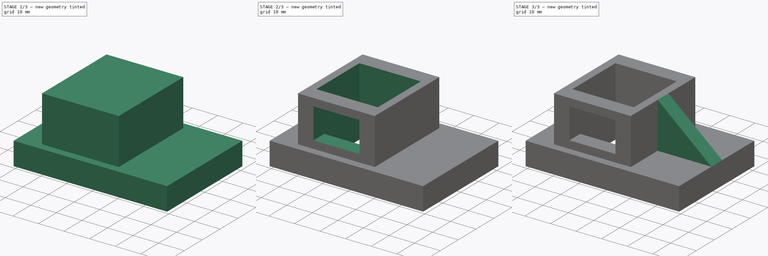
[diagram: build sequence overview — one tinted view per stage of 3, left to right]
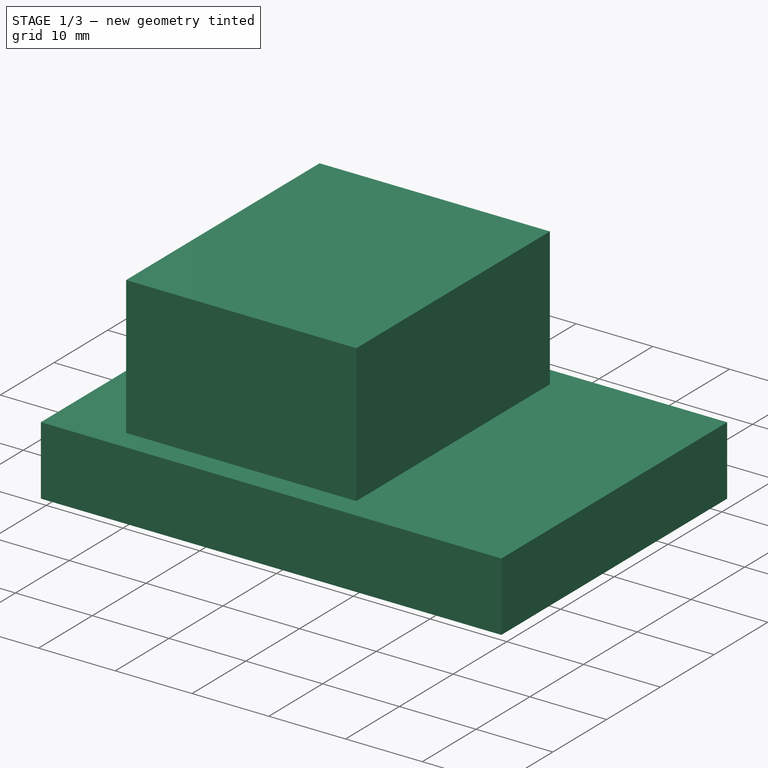
[diagram: stage 1 of 3 — iso view after this stage's code; geometry added in this stage tinted green]
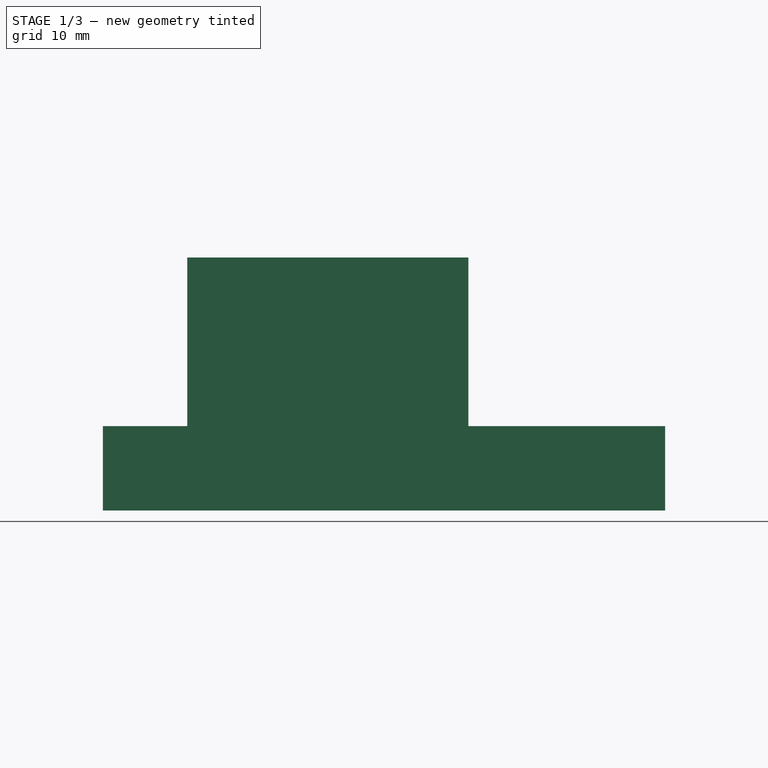
[diagram: stage 1 of 3 — front view after this stage's code; geometry added in this stage tinted green]
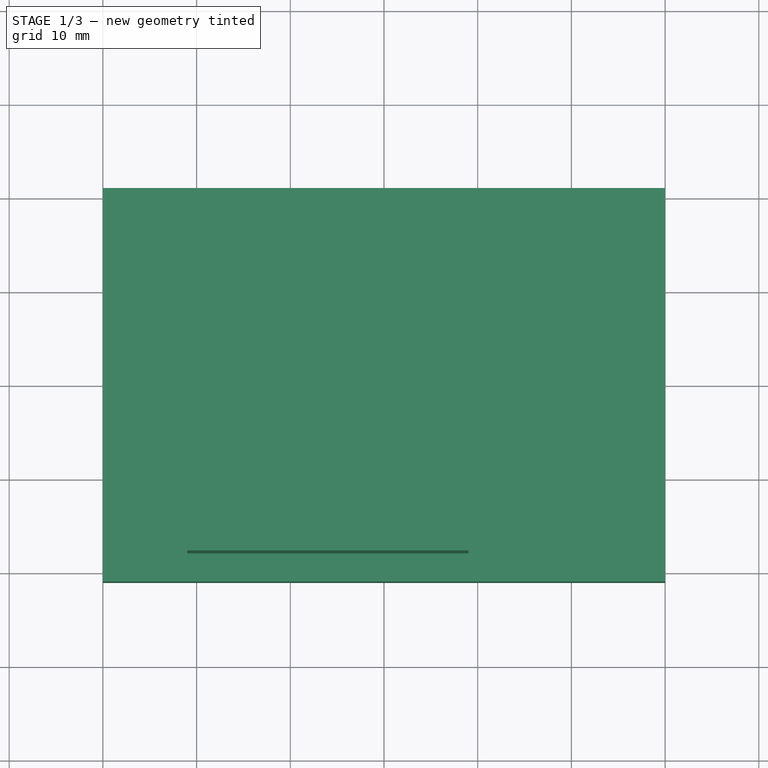
[diagram: stage 1 of 3 — top view after this stage's code; geometry added in this stage tinted green]
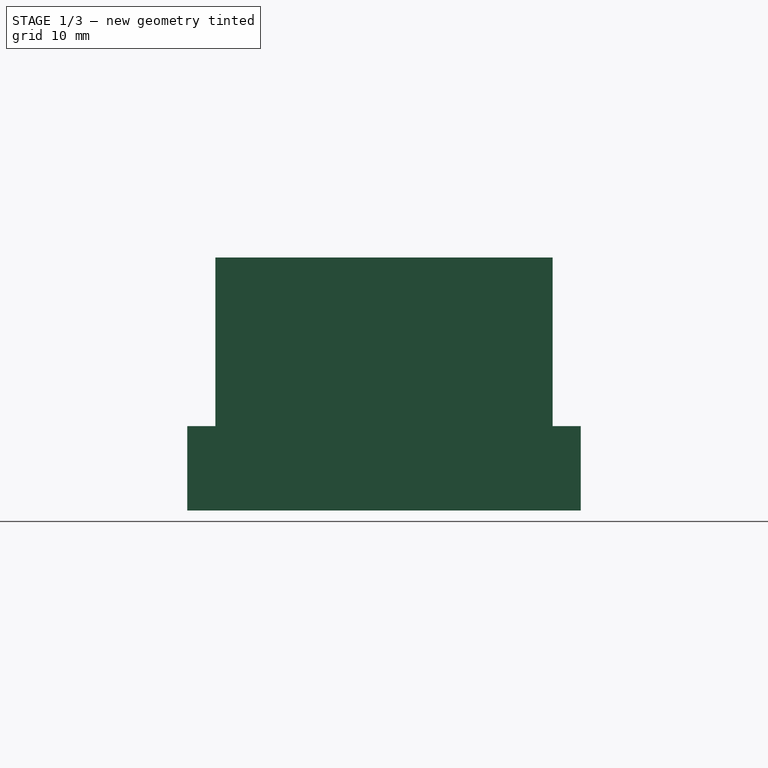
[diagram: stage 1 of 3 — right view after this stage's code; geometry added in this stage tinted green]
FCSTD DOCUMENT  (FreeCAD 0.16R)
Label: Fig 3.32 Final
License: All rights reserved
LicenseURL: http://en.wikipedia.org/wiki/All_rights_reserved
objects: Sketcher::SketchObject×5, PartDesign::Pad×3, PartDesign::Pocket×2, Part::MultiFuse×1
note: 16 computed .brp shape members not serialized (recipe doc carries the construction recipe); baked Part::Feature solids carry a one-line shape summary decoded from their .brp

FEATURE [Sketcher::SketchObject] Sketch
  sketch-geometry (4):
    g0: LineSegment StartX=-30 StartY=21 StartZ=0 EndX=30 EndY=21 EndZ=0
    g1: LineSegment StartX=30 StartY=21 StartZ=0 EndX=30 EndY=-21 EndZ=0
    g2: LineSegment StartX=30 StartY=-21 StartZ=0 EndX=-30 EndY=-21 EndZ=0
    g3: LineSegment StartX=-30 StartY=-21 StartZ=0 EndX=-30 EndY=21 EndZ=0
  constraints (12):
    c: Coincident(g0,g1)
    c: Coincident(g1,g2)
    c: Coincident(g2,g3)
    c: Coincident(g3,g0)
    c: Horizontal(g0)
    c: Horizontal(g2)
    c: Vertical(g1)
    c: Vertical(g3)
    c: DistanceX(g2,g2) = 60
    c: DistanceY(g1,g1) = 42
    c: Symmetric(g1,g0,g-1)
    c: Symmetric(g2,g1,g-2)
FEATURE [PartDesign::Pad] Pad
  Length = 9
  Length2 = 100
  Sketch = -> Sketch
  Type = 0
FEATURE [Sketcher::SketchObject] Sketch001
  ExternalGeometry = -> [Pad]
  Placement = pos=(0,0,9) rot=(0,0,1;0rad)
  Support = -> Pad [Face6]
  sketch-geometry (4):
    g0: LineSegment StartX=-21 StartY=18 StartZ=0 EndX=9 EndY=18 EndZ=0
    g1: LineSegment StartX=9 StartY=18 StartZ=0 EndX=9 EndY=-18 EndZ=0
    g2: LineSegment StartX=9 StartY=-18 StartZ=0 EndX=-21 EndY=-18 EndZ=0
    g3: LineSegment StartX=-21 StartY=-18 StartZ=0 EndX=-21 EndY=18 EndZ=0
  constraints (12):
    c: Coincident(g0,g1)
    c: Coincident(g1,g2)
    c: Coincident(g2,g3)
    c: Coincident(g3,g0)
    c: Horizontal(g0)
    c: Horizontal(g2)
    c: Vertical(g1)
    c: Vertical(g3)
    c: DistanceX(g2,g2) = 30
    c: DistanceY(g3,g3) = 36
    c: Symmetric(g0,g2,g-1)
    c: DistanceX(g0,g-5) = 21
FEATURE [PartDesign::Pad] Pad001
  Length = 18
  Length2 = 100
  Sketch = -> Sketch001
  Type = 0
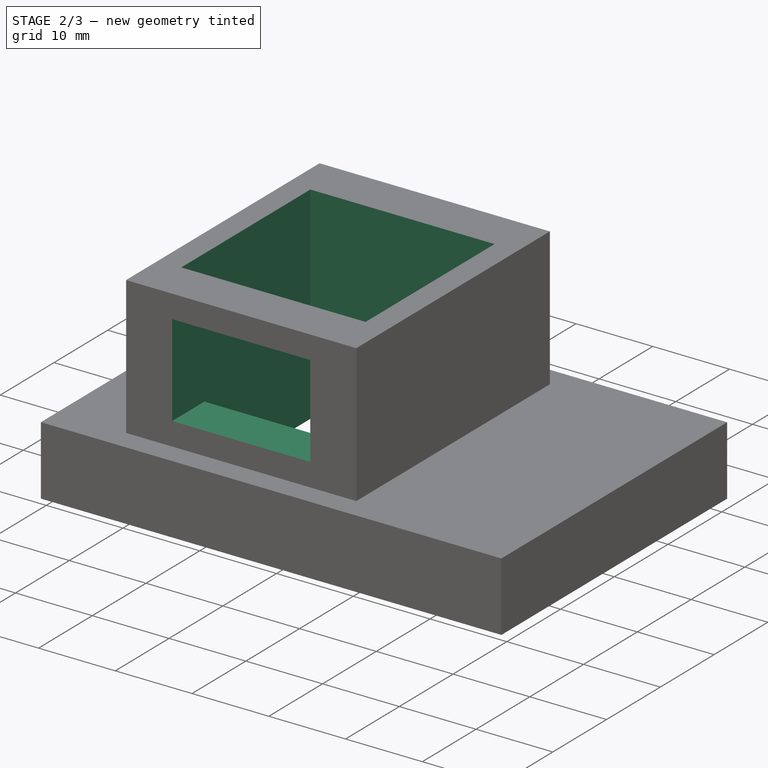
[diagram: stage 2 of 3 — iso view after this stage's code; geometry added in this stage tinted green]
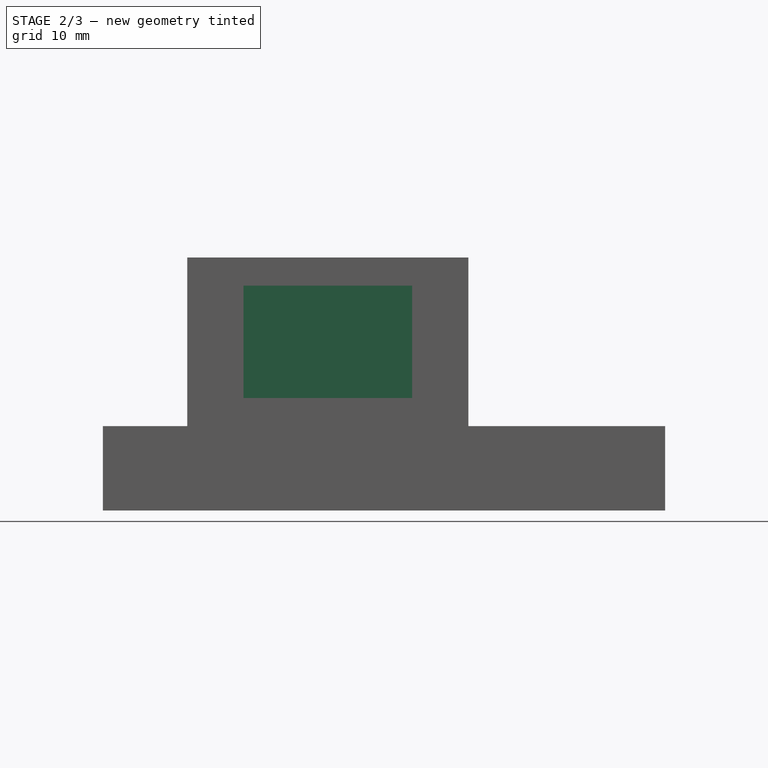
[diagram: stage 2 of 3 — front view after this stage's code; geometry added in this stage tinted green]
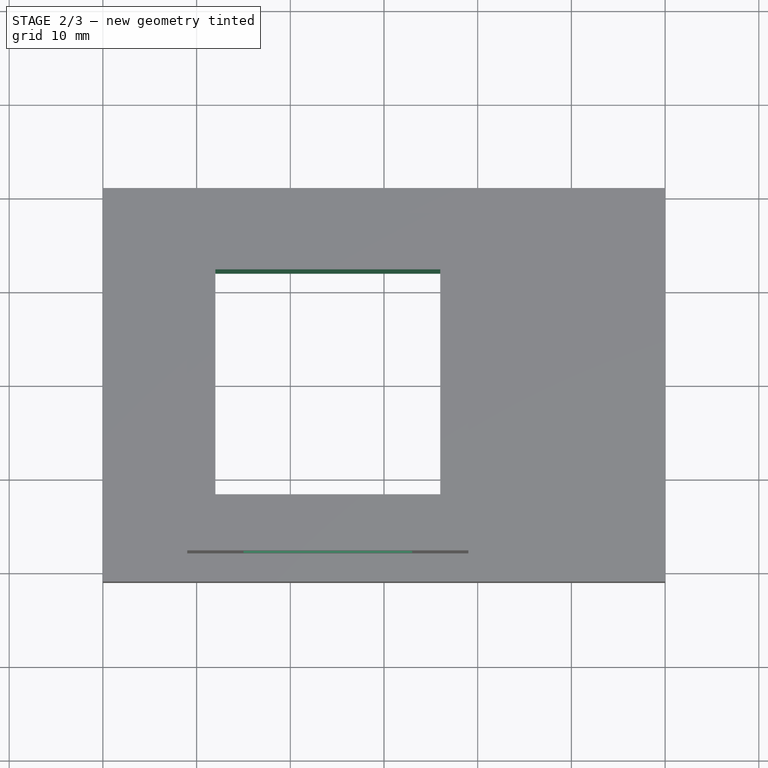
[diagram: stage 2 of 3 — top view after this stage's code; geometry added in this stage tinted green]
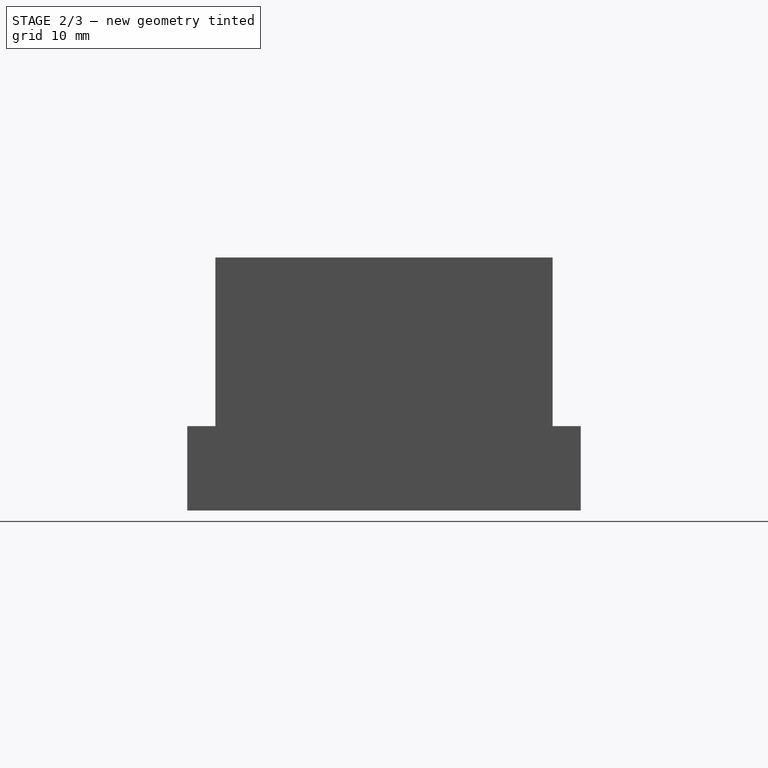
[diagram: stage 2 of 3 — right view after this stage's code; geometry added in this stage tinted green]
FEATURE [Sketcher::SketchObject] Sketch002
  ExternalGeometry = -> [Pad001]
  Placement = pos=(0,0,27) rot=(0,0,1;0rad)
  Support = -> Pad001 [Face11]
  sketch-geometry (4):
    g0: LineSegment StartX=-18 StartY=12 StartZ=0 EndX=6 EndY=12 EndZ=0
    g1: LineSegment StartX=6 StartY=12 StartZ=0 EndX=6 EndY=-12 EndZ=0
    g2: LineSegment StartX=6 StartY=-12 StartZ=0 EndX=-18 EndY=-12 EndZ=0
    g3: LineSegment StartX=-18 StartY=-12 StartZ=0 EndX=-18 EndY=12 EndZ=0
  constraints (12):
    c: Coincident(g0,g1)
    c: Coincident(g1,g2)
    c: Coincident(g2,g3)
    c: Coincident(g3,g0)
    c: Horizontal(g0)
    c: Horizontal(g2)
    c: Vertical(g1)
    c: Vertical(g3)
    c: DistanceY(g1,g1) = 24
    c: Symmetric(g1,g0,g-1)
    c: DistanceX(g-5,g2) = 3
    c: DistanceX(g1,g-5) = 3
FEATURE [PartDesign::Pocket] Pocket
  Length = 18
  Sketch = -> Sketch002
  Type = 1
FEATURE [Sketcher::SketchObject] Sketch005
  ExternalGeometry = -> [Pocket]
  Placement = pos=(0,-18,0) rot=(1,0,0;1.5708rad)
  Support = -> Pocket [Face12]
  sketch-geometry (4):
    g0: LineSegment StartX=-15 StartY=24 StartZ=0 EndX=3 EndY=24 EndZ=0
    g1: LineSegment StartX=3 StartY=24 StartZ=0 EndX=3 EndY=12 EndZ=0
    g2: LineSegment StartX=3 StartY=12 StartZ=0 EndX=-15 EndY=12 EndZ=0
    g3: LineSegment StartX=-15 StartY=12 StartZ=0 EndX=-15 EndY=24 EndZ=0
  constraints (12):
    c: Coincident(g0,g1)
    c: Coincident(g1,g2)
    c: Coincident(g2,g3)
    c: Coincident(g3,g0)
    c: Horizontal(g0)
    c: Horizontal(g2)
    c: Vertical(g1)
    c: Vertical(g3)
    c: DistanceX(g0,g-4) = 6
    c: DistanceX(g0,g0) = 18
    c: DistanceY(g3,g3) = 12
    c: DistanceY(g0,g-4) = 3
FEATURE [PartDesign::Pocket] Pocket001
  Length = 6
  Sketch = -> Sketch005
  Type = 0
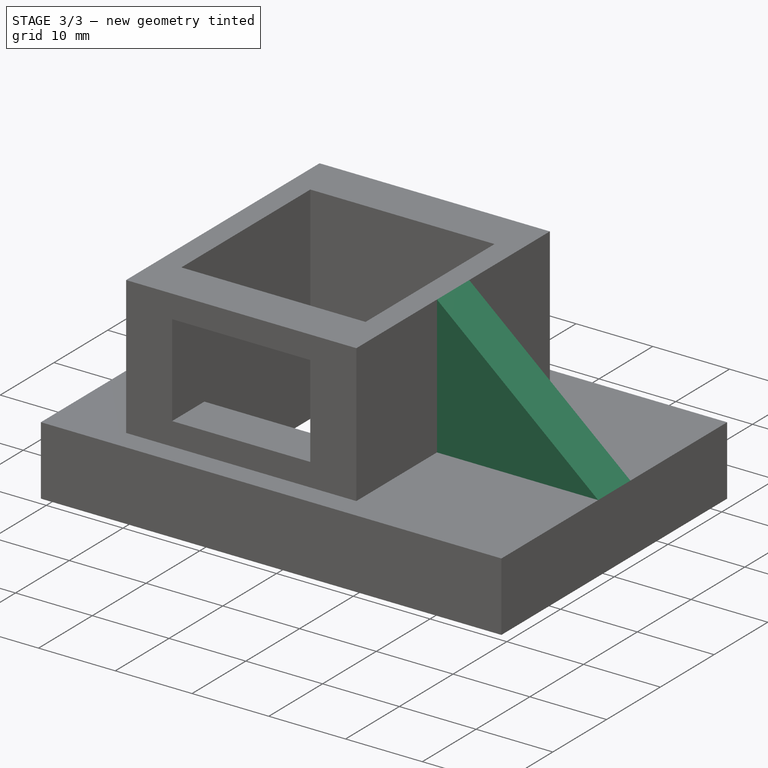
[diagram: stage 3 of 3 — iso view after this stage's code; geometry added in this stage tinted green]
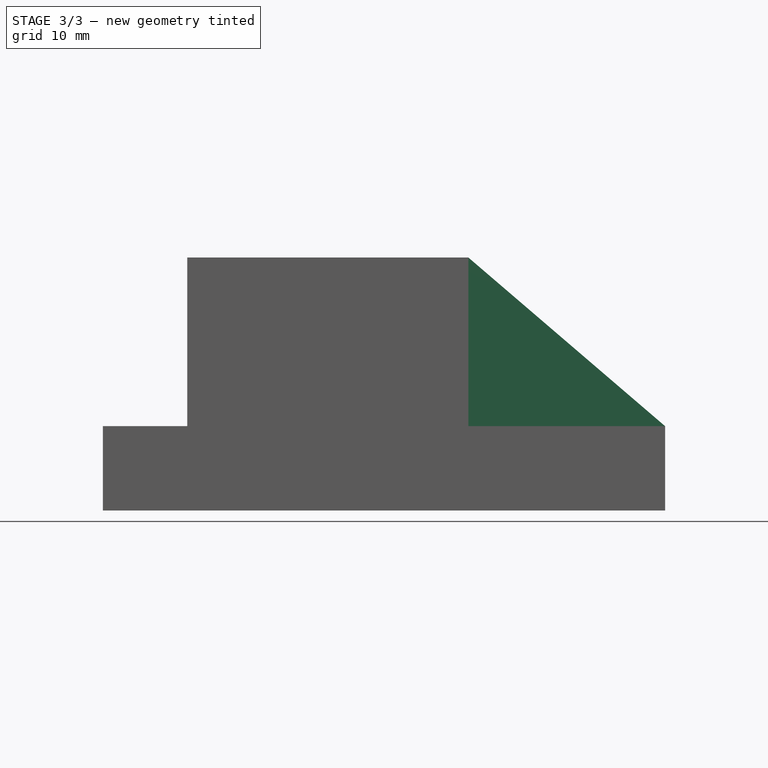
[diagram: stage 3 of 3 — front view after this stage's code; geometry added in this stage tinted green]
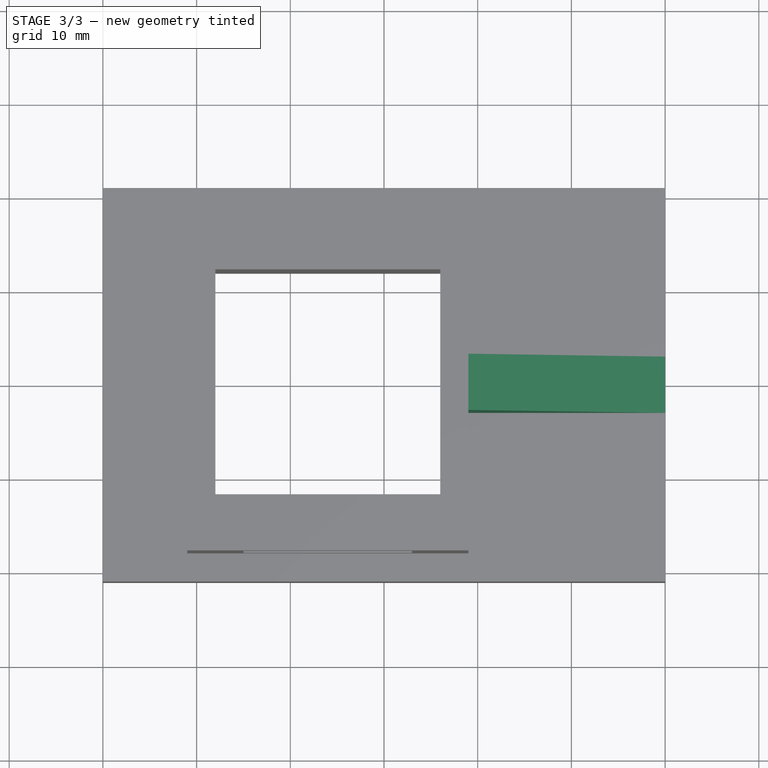
[diagram: stage 3 of 3 — top view after this stage's code; geometry added in this stage tinted green]
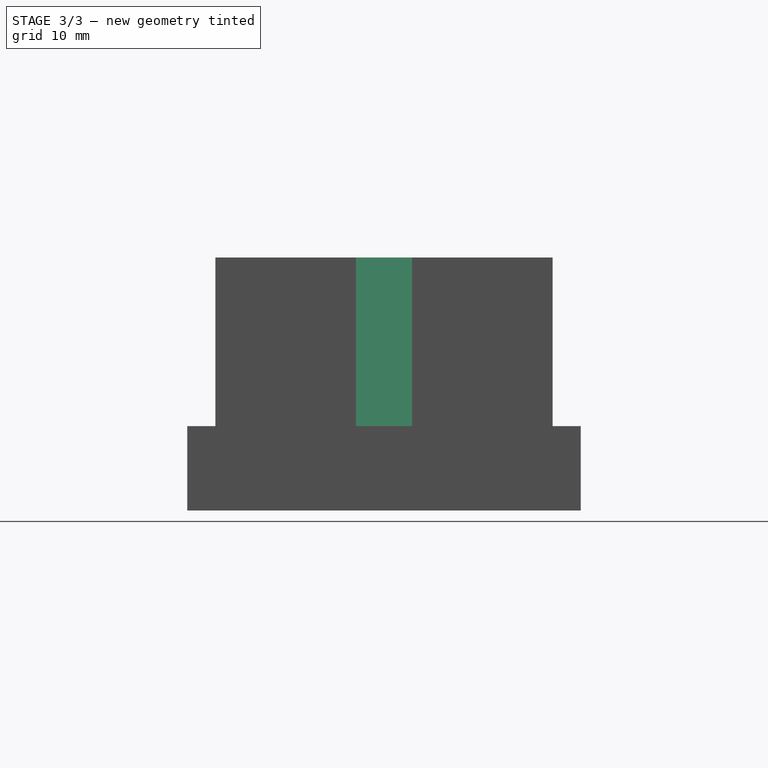
[diagram: stage 3 of 3 — right view after this stage's code; geometry added in this stage tinted green]
FEATURE [Sketcher::SketchObject] Sketch004
  Placement = pos=(0,0,0) rot=(-1,0,0;4.71239rad)
  sketch-geometry (3):
    g0: LineSegment StartX=9 StartY=27 StartZ=0 EndX=9 EndY=9 EndZ=0
    g1: LineSegment StartX=9 StartY=9 StartZ=0 EndX=30 EndY=9 EndZ=0
    g2: LineSegment StartX=30 StartY=9 StartZ=0 EndX=9 EndY=27 EndZ=0
  constraints (9):
    c: Coincident(g0,g1)
    c: Horizontal(g1)
    c: Coincident(g1,g2)
    c: Coincident(g2,g0)
    c: Vertical(g0)
    c: DistanceY(g-1,g1) = 9
    c: DistanceX(g-1,g1) = 30
    c: DistanceX(g0,g1) = 21
    c: DistanceY(g0,g0) = 18
FEATURE [PartDesign::Pad] Pad002
  Length = 6
  Length2 = 100
  Midplane = true
  Placement = pos=(0,0,0) rot=(-1,0,0;4.71239rad)
  Sketch = -> Sketch004
  Type = 0
FEATURE [Part::MultiFuse] Fusion
  Shapes = -> [Pocket001,Pad002]
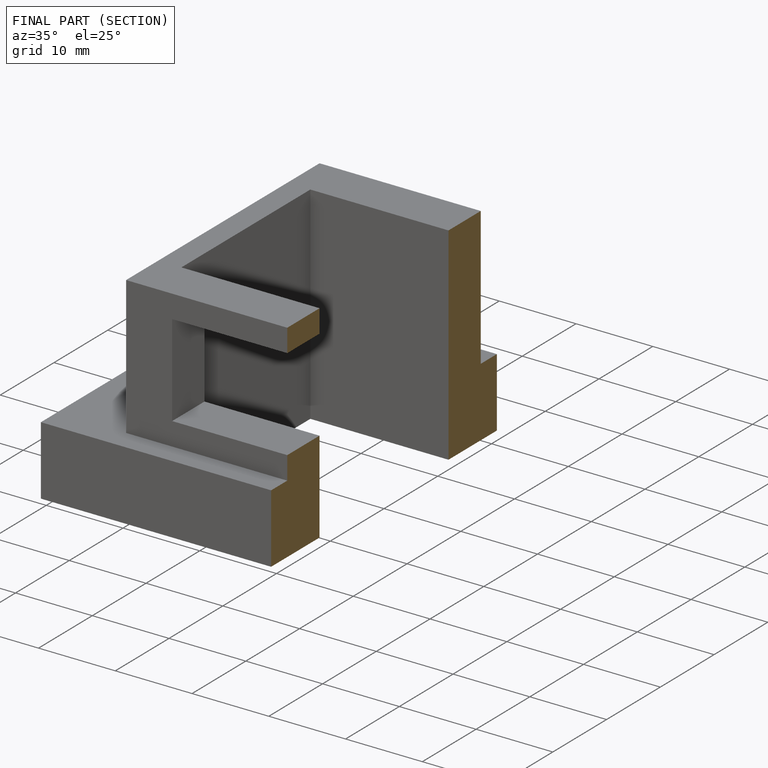
[diagram: finished part — half-section view (interior)]
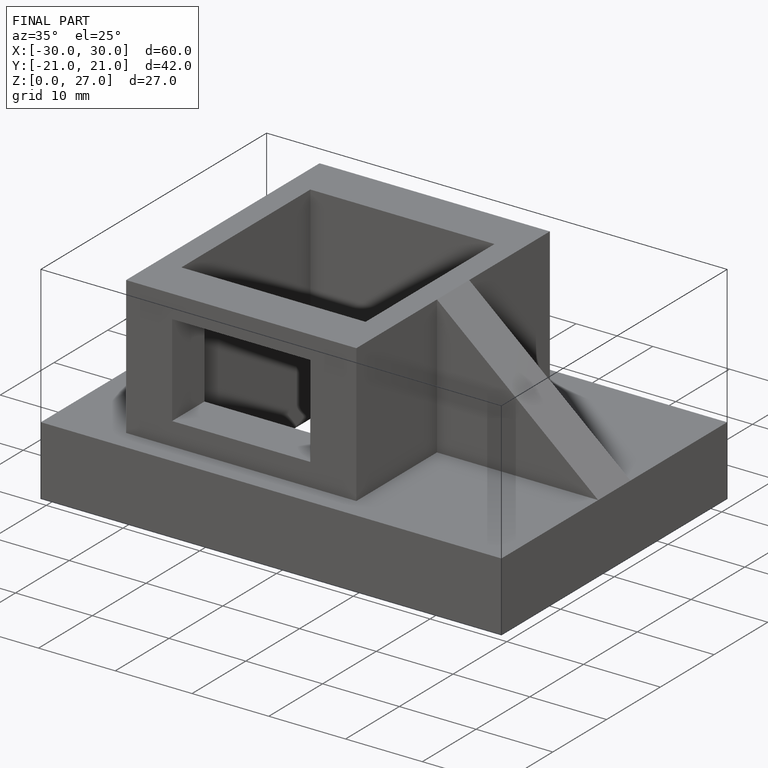
[diagram: finished part — iso view with bounding-box wireframe]
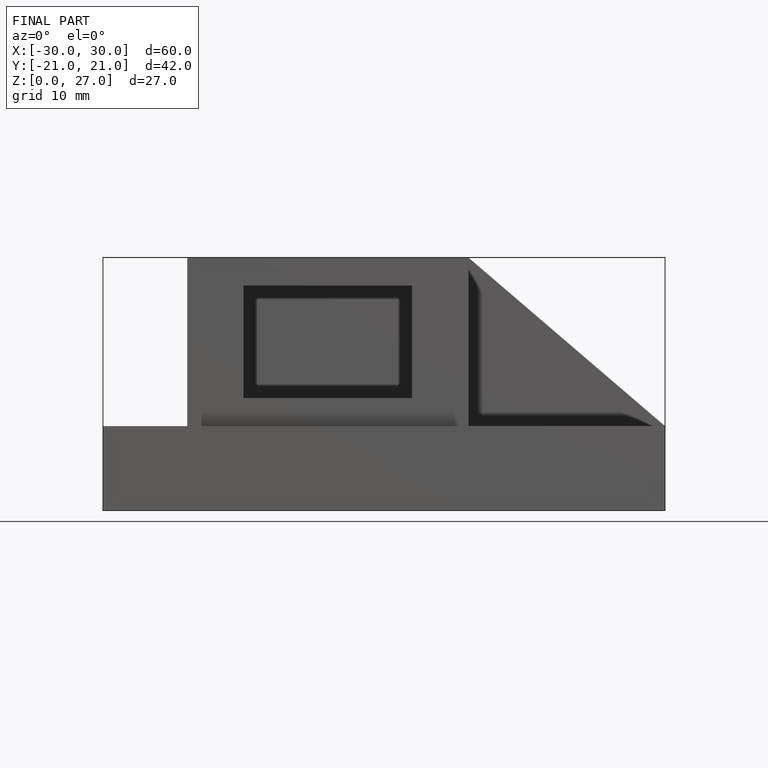
[diagram: finished part — front view with bounding-box wireframe]
